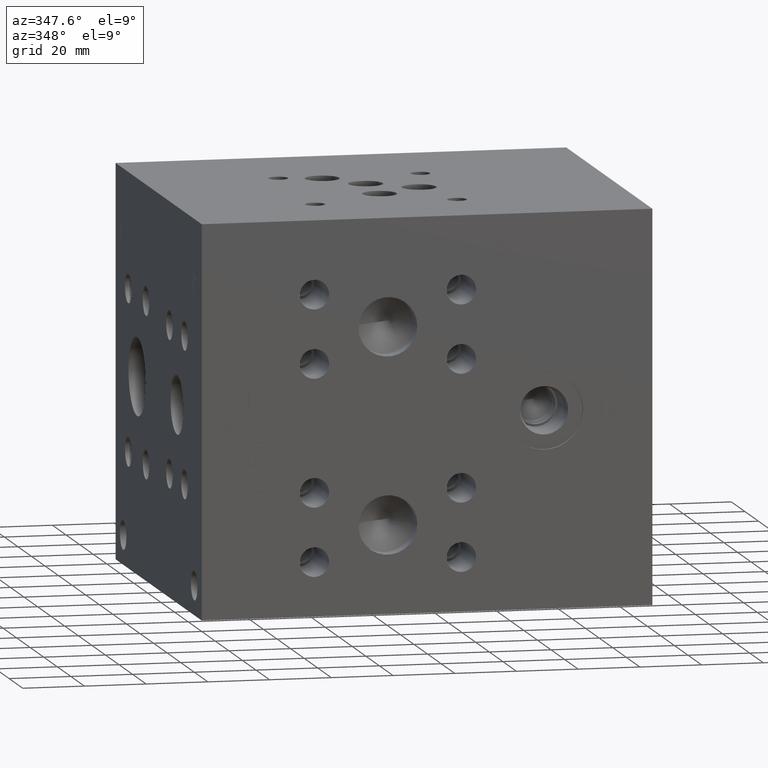
[diagram: clean part render]
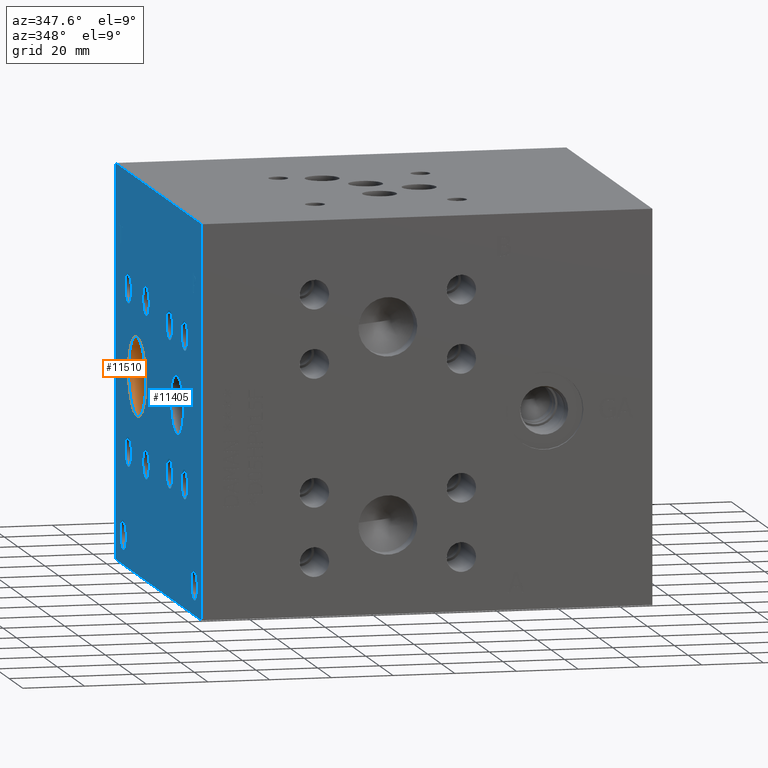
[diagram: same view with the hole feature highlighted: cylindrical wall and planar end face, labeled with their STEP entity ids]
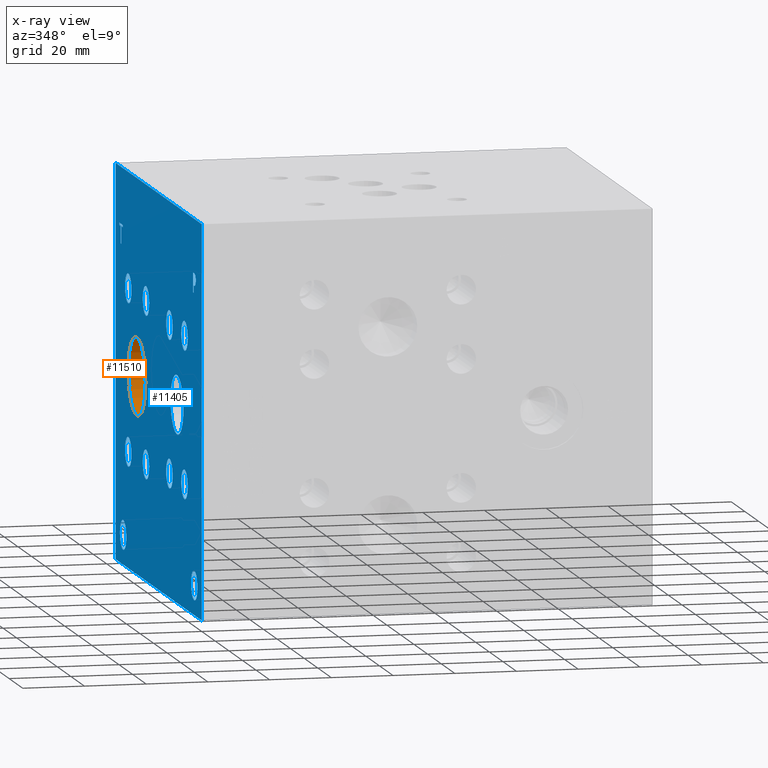
[diagram: x-ray of the same camera — body ghosted, the hole faces saturated]
A machine part, auxiliary view. The highlighted faces form one hole feature of diameter 25.4 mm: the cylindrical wall (entity #11510, orange) and its adjacent planar end face (entity #11405, blue) — they share a circular edge in the B-rep.
The next image is the same camera in x-ray (body ghosted, the hole faces saturated) — the bore reads through the body.
Wall:
#45=CYLINDRICAL_SURFACE('',#12154,12.7);
#203=CIRCLE('',#11975,12.7);
#204=CIRCLE('',#11976,12.7);
#290=CIRCLE('',#12152,12.7);
#291=CIRCLE('',#12153,12.7);
#1386=FACE_OUTER_BOUND('',#2071,.T.);
#2071=EDGE_LOOP('',(#9992,#9993,#9994,#9995,#9996,#9997));
#3195=LINE('',#19368,#4267);
#4267=VECTOR('',#14442,12.7);
#5384=VERTEX_POINT('',#18716);
#5385=VERTEX_POINT('',#18717);
#5538=VERTEX_POINT('',#19361);
#5539=VERTEX_POINT('',#19362);
#6858=EDGE_CURVE('',#5384,#5385,#203,.T.);
#6859=EDGE_CURVE('',#5385,#5384,#204,.T.);
#7081=EDGE_CURVE('',#5538,#5539,#290,.T.);
#7083=EDGE_CURVE('',#5539,#5538,#291,.T.);
#7084=EDGE_CURVE('',#5385,#5539,#3195,.T.);
#9992=ORIENTED_EDGE('',*,*,#6858,.F.);
#9993=ORIENTED_EDGE('',*,*,#6859,.F.);
#9994=ORIENTED_EDGE('',*,*,#7084,.T.);
#9995=ORIENTED_EDGE('',*,*,#7081,.F.);
#9996=ORIENTED_EDGE('',*,*,#7083,.F.);
#9997=ORIENTED_EDGE('',*,*,#7084,.F.);
#11510=ADVANCED_FACE('',(#1386),#45,.F.);
#11975=AXIS2_PLACEMENT_3D('',#18718,#13967,#13968);
#11976=AXIS2_PLACEMENT_3D('',#18719,#13969,#13970);
#12152=AXIS2_PLACEMENT_3D('',#19363,#14435,#14436);
#12153=AXIS2_PLACEMENT_3D('',#19366,#14438,#14439);
#12154=AXIS2_PLACEMENT_3D('',#19367,#14440,#14441);
#13967=DIRECTION('center_axis',(1.,0.,0.));
#13968=DIRECTION('ref_axis',(0.,1.,0.));
#13969=DIRECTION('center_axis',(1.,0.,0.));
#13970=DIRECTION('ref_axis',(0.,1.,0.));
#14435=DIRECTION('center_axis',(-1.,0.,0.));
#14436=DIRECTION('ref_axis',(0.,1.,0.));
#14438=DIRECTION('center_axis',(-1.,0.,0.));
#14439=DIRECTION('ref_axis',(0.,1.,0.));
#14440=DIRECTION('center_axis',(-1.,0.,0.));
#14441=DIRECTION('ref_axis',(0.,1.,0.));
#14442=DIRECTION('',(1.,0.,0.));
#18716=CARTESIAN_POINT('',(0.,107.95,63.5));
#18717=CARTESIAN_POINT('',(0.,82.55,63.5));
#18718=CARTESIAN_POINT('Origin',(0.,95.25,63.5));
#18719=CARTESIAN_POINT('Origin',(0.,95.25,63.5));
#19361=CARTESIAN_POINT('',(7.33235,107.95,63.5));
#19362=CARTESIAN_POINT('',(7.33235,82.55,63.5));
#19363=CARTESIAN_POINT('Origin',(7.33235,95.25,63.5));
#19366=CARTESIAN_POINT('Origin',(7.33235,95.25,63.5));
#19367=CARTESIAN_POINT('Origin',(3.666175,95.25,63.5));
#19368=CARTESIAN_POINT('',(3.666175,82.55,63.5));
End face:
#185=CIRCLE('',#11957,9.525);
#186=CIRCLE('',#11958,9.525);
#187=CIRCLE('',#11959,4.7625);
#188=CIRCLE('',#11960,4.7625);
#189=CIRCLE('',#11961,4.7625);
#190=CIRCLE('',#11962,4.7625);
#191=CIRCLE('',#11963,4.7625);
#192=CIRCLE('',#11964,4.7625);
#193=CIRCLE('',#11965,4.7625);
#194=CIRCLE('',#11966,4.7625);
#195=CIRCLE('',#11967,4.7625);
#196=CIRCLE('',#11968,4.7625);
#197=CIRCLE('',#11969,4.7625);
#198=CIRCLE('',#11970,4.7625);
#199=CIRCLE('',#11971,4.7625);
#200=CIRCLE('',#11972,4.7625);
#201=CIRCLE('',#11973,4.7625);
#202=CIRCLE('',#11974,4.7625);
#203=CIRCLE('',#11975,12.7);
#204=CIRCLE('',#11976,12.7);
#205=CIRCLE('',#11977,4.7625);
#206=CIRCLE('',#11978,4.7625);
#207=CIRCLE('',#11979,4.7625);
#208=CIRCLE('',#11980,4.7625);
#480=FACE_BOUND('',#1936,.T.);
#481=FACE_BOUND('',#1937,.T.);
#482=FACE_BOUND('',#1938,.T.);
#483=FACE_BOUND('',#1939,.T.);
#484=FACE_BOUND('',#1940,.T.);
#485=FACE_BOUND('',#1941,.T.);
#486=FACE_BOUND('',#1942,.T.);
#487=FACE_BOUND('',#1943,.T.);
#488=FACE_BOUND('',#1944,.T.);
#489=FACE_BOUND('',#1945,.T.);
#490=FACE_BOUND('',#1946,.T.);
#491=FACE_BOUND('',#1947,.T.);
#492=FACE_BOUND('',#1948,.T.);
#493=FACE_BOUND('',#1949,.T.);
#824=PLANE('',#11956);
#1281=FACE_OUTER_BOUND('',#1935,.T.);
#1935=EDGE_LOOP('',(#9465,#9466,#9467,#9468));
#1936=EDGE_LOOP('',(#9469,#9470,#9471,#9472,#9473,#9474,#9475,#9476));
#1937=EDGE_LOOP('',(#9477,#9478));
#1938=EDGE_LOOP('',(#9479,#9480));
#1939=EDGE_LOOP('',(#9481,#9482));
#1940=EDGE_LOOP('',(#9483,#9484));
#1941=EDGE_LOOP('',(#9485,#9486));
#1942=EDGE_LOOP('',(#9487,#9488));
#1943=EDGE_LOOP('',(#9489,#9490));
#1944=EDGE_LOOP('',(#9491,#9492));
#1945=EDGE_LOOP('',(#9493,#9494));
#1946=EDGE_LOOP('',(#9495,#9496));
#1947=EDGE_LOOP('',(#9497,#9498));
#1948=EDGE_LOOP('',(#9499,#9500));
#1949=EDGE_LOOP('',(#9501,#9502,#9503,#9504,#9505,#9506,#9507,#9508,#9509));
#2504=LINE('',#16739,#3576);
#3021=LINE('',#18427,#4093);
#3025=LINE('',#18435,#4097);
#3028=LINE('',#18441,#4100);
#3031=LINE('',#18447,#4103);
#3034=LINE('',#18453,#4106);
#3037=LINE('',#18459,#4109);
#3040=LINE('',#18465,#4112);
#3043=LINE('',#18470,#4115);
#3061=LINE('',#18610,#4133);
#3064=LINE('',#18616,#4136);
#3067=LINE('',#18622,#4139);
#3070=LINE('',#18628,#4142);
#3073=LINE('',#18634,#4145);
#3077=LINE('',#18676,#4149);
#3078=LINE('',#18678,#4150);
#3079=LINE('',#18679,#4151);
#3576=VECTOR('',#12869,10.);
#4093=VECTOR('',#13836,10.);
#4097=VECTOR('',#13842,10.);
#4100=VECTOR('',#13847,10.);
#4103=VECTOR('',#13852,10.);
#4106=VECTOR('',#13857,10.);
#4109=VECTOR('',#13862,10.);
#4112=VECTOR('',#13867,10.);
#4115=VECTOR('',#13872,10.);
#4133=VECTOR('',#13900,10.);
#4136=VECTOR('',#13905,10.);
#4139=VECTOR('',#13910,10.);
#4142=VECTOR('',#13915,10.);
#4145=VECTOR('',#13920,10.);
#4149=VECTOR('',#13928,10.);
#4150=VECTOR('',#13929,10.);
#4151=VECTOR('',#13930,10.);
#4552=B_SPLINE_CURVE_WITH_KNOTS('',2,(#18577,#18578,#18579,#18580),
 .UNSPECIFIED.,.F.,.F.,(3,1,3),(0.,1.,2.),.UNSPECIFIED.);
#4554=B_SPLINE_CURVE_WITH_KNOTS('',2,(#18598,#18599,#18600,#18601),
 .UNSPECIFIED.,.F.,.F.,(3,1,3),(0.,1.,2.),.UNSPECIFIED.);
#4556=B_SPLINE_CURVE_WITH_KNOTS('',2,(#18647,#18648,#18649,#18650),
 .UNSPECIFIED.,.F.,.F.,(3,1,3),(0.,1.,2.),.UNSPECIFIED.);
#4558=B_SPLINE_CURVE_WITH_KNOTS('',2,(#18665,#18666,#18667,#18668),
 .UNSPECIFIED.,.F.,.F.,(3,1,3),(0.,1.,2.),.UNSPECIFIED.);
#4872=VERTEX_POINT('',#16732);
#4875=VERTEX_POINT('',#16737);
#5316=VERTEX_POINT('',#18425);
#5317=VERTEX_POINT('',#18426);
#5320=VERTEX_POINT('',#18434);
#5322=VERTEX_POINT('',#18440);
#5324=VERTEX_POINT('',#18446);
#5326=VERTEX_POINT('',#18452);
#5328=VERTEX_POINT('',#18458);
#5330=VERTEX_POINT('',#18464);
#5346=VERTEX_POINT('',#18575);
#5347=VERTEX_POINT('',#18576);
#5350=VERTEX_POINT('',#18597);
#5352=VERTEX_POINT('',#18609);
#5354=VERTEX_POINT('',#18615);
#5356=VERTEX_POINT('',#18621);
#5358=VERTEX_POINT('',#18627);
#5360=VERTEX_POINT('',#18633);
#5362=VERTEX_POINT('',#18646);
#5364=VERTEX_POINT('',#18675);
#5365=VERTEX_POINT('',#18677);
#5366=VERTEX_POINT('',#18680);
#5367=VERTEX_POINT('',#18681);
#5368=VERTEX_POINT('',#18684);
#5369=VERTEX_POINT('',#18685);
#5370=VERTEX_POINT('',#18688);
#5371=VERTEX_POINT('',#18689);
#5372=VERTEX_POINT('',#18692);
#5373=VERTEX_POINT('',#18693);
#5374=VERTEX_POINT('',#18696);
#5375=VERTEX_POINT('',#18697);
#5376=VERTEX_POINT('',#18700);
#5377=VERTEX_POINT('',#18701);
#5378=VERTEX_POINT('',#18704);
#5379=VERTEX_POINT('',#18705);
#5380=VERTEX_POINT('',#18708);
#5381=VERTEX_POINT('',#18709);
#5382=VERTEX_POINT('',#18712);
#5383=VERTEX_POINT('',#18713);
#5384=VERTEX_POINT('',#18716);
#5385=VERTEX_POINT('',#18717);
#5386=VERTEX_POINT('',#18720);
#5387=VERTEX_POINT('',#18721);
#5388=VERTEX_POINT('',#18724);
#5389=VERTEX_POINT('',#18725);
#6136=EDGE_CURVE('',#4872,#4875,#2504,.T.);
#6765=EDGE_CURVE('',#5316,#5317,#3021,.T.);
#6769=EDGE_CURVE('',#5320,#5316,#3025,.T.);
#6772=EDGE_CURVE('',#5322,#5320,#3028,.T.);
#6775=EDGE_CURVE('',#5324,#5322,#3031,.T.);
#6778=EDGE_CURVE('',#5326,#5324,#3034,.T.);
#6781=EDGE_CURVE('',#5328,#5326,#3037,.T.);
#6784=EDGE_CURVE('',#5330,#5328,#3040,.T.);
#6787=EDGE_CURVE('',#5317,#5330,#3043,.T.);
#6810=EDGE_CURVE('',#5346,#5347,#4552,.T.);
#6814=EDGE_CURVE('',#5350,#5346,#4554,.T.);
#6817=EDGE_CURVE('',#5352,#5350,#3061,.T.);
#6820=EDGE_CURVE('',#5354,#5352,#3064,.T.);
#6823=EDGE_CURVE('',#5356,#5354,#3067,.T.);
#6826=EDGE_CURVE('',#5358,#5356,#3070,.T.);
#6829=EDGE_CURVE('',#5360,#5358,#3073,.T.);
#6832=EDGE_CURVE('',#5362,#5360,#4556,.T.);
#6835=EDGE_CURVE('',#5347,#5362,#4558,.T.);
#6837=EDGE_CURVE('',#5364,#4872,#3077,.T.);
#6838=EDGE_CURVE('',#5365,#4875,#3078,.T.);
#6839=EDGE_CURVE('',#5364,#5365,#3079,.T.);
#6840=EDGE_CURVE('',#5366,#5367,#185,.T.);
#6841=EDGE_CURVE('',#5367,#5366,#186,.T.);
#6842=EDGE_CURVE('',#5368,#5369,#187,.T.);
#6843=EDGE_CURVE('',#5369,#5368,#188,.T.);
#6844=EDGE_CURVE('',#5370,#5371,#189,.T.);
#6845=EDGE_CURVE('',#5371,#5370,#190,.T.);
#6846=EDGE_CURVE('',#5372,#5373,#191,.T.);
#6847=EDGE_CURVE('',#5373,#5372,#192,.T.);
#6848=EDGE_CURVE('',#5374,#5375,#193,.T.);
#6849=EDGE_CURVE('',#5375,#5374,#194,.T.);
#6850=EDGE_CURVE('',#5376,#5377,#195,.T.);
#6851=EDGE_CURVE('',#5377,#5376,#196,.T.);
#6852=EDGE_CURVE('',#5378,#5379,#197,.T.);
#6853=EDGE_CURVE('',#5379,#5378,#198,.T.);
#6854=EDGE_CURVE('',#5380,#5381,#199,.T.);
#6855=EDGE_CURVE('',#5381,#5380,#200,.T.);
#6856=EDGE_CURVE('',#5382,#5383,#201,.T.);
#6857=EDGE_CURVE('',#5383,#5382,#202,.T.);
#6858=EDGE_CURVE('',#5384,#5385,#203,.T.);
#6859=EDGE_CURVE('',#5385,#5384,#204,.T.);
#6860=EDGE_CURVE('',#5386,#5387,#205,.T.);
#6861=EDGE_CURVE('',#5387,#5386,#206,.T.);
#6862=EDGE_CURVE('',#5388,#5389,#207,.T.);
#6863=EDGE_CURVE('',#5389,#5388,#208,.T.);
#9465=ORIENTED_EDGE('',*,*,#6837,.T.);
#9466=ORIENTED_EDGE('',*,*,#6136,.T.);
#9467=ORIENTED_EDGE('',*,*,#6838,.F.);
#9468=ORIENTED_EDGE('',*,*,#6839,.F.);
#9469=ORIENTED_EDGE('',*,*,#6765,.T.);
#9470=ORIENTED_EDGE('',*,*,#6787,.T.);
#9471=ORIENTED_EDGE('',*,*,#6784,.T.);
#9472=ORIENTED_EDGE('',*,*,#6781,.T.);
#9473=ORIENTED_EDGE('',*,*,#6778,.T.);
#9474=ORIENTED_EDGE('',*,*,#6775,.T.);
#9475=ORIENTED_EDGE('',*,*,#6772,.T.);
#9476=ORIENTED_EDGE('',*,*,#6769,.T.);
#9477=ORIENTED_EDGE('',*,*,#6840,.T.);
#9478=ORIENTED_EDGE('',*,*,#6841,.T.);
#9479=ORIENTED_EDGE('',*,*,#6842,.T.);
#9480=ORIENTED_EDGE('',*,*,#6843,.T.);
#9481=ORIENTED_EDGE('',*,*,#6844,.T.);
#9482=ORIENTED_EDGE('',*,*,#6845,.T.);
#9483=ORIENTED_EDGE('',*,*,#6846,.T.);
#9484=ORIENTED_EDGE('',*,*,#6847,.T.);
#9485=ORIENTED_EDGE('',*,*,#6848,.T.);
#9486=ORIENTED_EDGE('',*,*,#6849,.T.);
#9487=ORIENTED_EDGE('',*,*,#6850,.T.);
#9488=ORIENTED_EDGE('',*,*,#6851,.T.);
#9489=ORIENTED_EDGE('',*,*,#6852,.T.);
#9490=ORIENTED_EDGE('',*,*,#6853,.T.);
#9491=ORIENTED_EDGE('',*,*,#6854,.T.);
#9492=ORIENTED_EDGE('',*,*,#6855,.T.);
#9493=ORIENTED_EDGE('',*,*,#6856,.T.);
#9494=ORIENTED_EDGE('',*,*,#6857,.T.);
#9495=ORIENTED_EDGE('',*,*,#6858,.T.);
#9496=ORIENTED_EDGE('',*,*,#6859,.T.);
#9497=ORIENTED_EDGE('',*,*,#6860,.T.);
#9498=ORIENTED_EDGE('',*,*,#6861,.T.);
#9499=ORIENTED_EDGE('',*,*,#6862,.T.);
#9500=ORIENTED_EDGE('',*,*,#6863,.T.);
#9501=ORIENTED_EDGE('',*,*,#6810,.T.);
#9502=ORIENTED_EDGE('',*,*,#6835,.T.);
#9503=ORIENTED_EDGE('',*,*,#6832,.T.);
#9504=ORIENTED_EDGE('',*,*,#6829,.T.);
#9505=ORIENTED_EDGE('',*,*,#6826,.T.);
#9506=ORIENTED_EDGE('',*,*,#6823,.T.);
#9507=ORIENTED_EDGE('',*,*,#6820,.T.);
#9508=ORIENTED_EDGE('',*,*,#6817,.T.);
#9509=ORIENTED_EDGE('',*,*,#6814,.T.);
#11405=ADVANCED_FACE('',(#1281,#480,#481,#482,#483,#484,#485,#486,#487,
#488,#489,#490,#491,#492,#493),#824,.T.);
#11956=AXIS2_PLACEMENT_3D('',#18674,#13926,#13927);
#11957=AXIS2_PLACEMENT_3D('',#18682,#13931,#13932);
#11958=AXIS2_PLACEMENT_3D('',#18683,#13933,#13934);
#11959=AXIS2_PLACEMENT_3D('',#18686,#13935,#13936);
#11960=AXIS2_PLACEMENT_3D('',#18687,#13937,#13938);
#11961=AXIS2_PLACEMENT_3D('',#18690,#13939,#13940);
#11962=AXIS2_PLACEMENT_3D('',#18691,#13941,#13942);
#11963=AXIS2_PLACEMENT_3D('',#18694,#13943,#13944);
#11964=AXIS2_PLACEMENT_3D('',#18695,#13945,#13946);
#11965=AXIS2_PLACEMENT_3D('',#18698,#13947,#13948);
#11966=AXIS2_PLACEMENT_3D('',#18699,#13949,#13950);
#11967=AXIS2_PLACEMENT_3D('',#18702,#13951,#13952);
#11968=AXIS2_PLACEMENT_3D('',#18703,#13953,#13954);
#11969=AXIS2_PLACEMENT_3D('',#18706,#13955,#13956);
#11970=AXIS2_PLACEMENT_3D('',#18707,#13957,#13958);
#11971=AXIS2_PLACEMENT_3D('',#18710,#13959,#13960);
#11972=AXIS2_PLACEMENT_3D('',#18711,#13961,#13962);
#11973=AXIS2_PLACEMENT_3D('',#18714,#13963,#13964);
#11974=AXIS2_PLACEMENT_3D('',#18715,#13965,#13966);
#11975=AXIS2_PLACEMENT_3D('',#18718,#13967,#13968);
#11976=AXIS2_PLACEMENT_3D('',#18719,#13969,#13970);
#11977=AXIS2_PLACEMENT_3D('',#18722,#13971,#13972);
#11978=AXIS2_PLACEMENT_3D('',#18723,#13973,#13974);
#11979=AXIS2_PLACEMENT_3D('',#18726,#13975,#13976);
#11980=AXIS2_PLACEMENT_3D('',#18727,#13977,#13978);
#12869=DIRECTION('',(0.,0.,1.));
#13836=DIRECTION('',(0.,1.,0.));
#13842=DIRECTION('',(0.,3.17280044688051E-15,-1.));
#13847=DIRECTION('',(0.,1.,8.33818088455555E-15));
#13852=DIRECTION('',(0.,2.36438827822327E-14,-1.));
#13857=DIRECTION('',(0.,-1.,-3.47984565141734E-15));
#13862=DIRECTION('',(0.,-2.36438827822332E-14,1.));
#13867=DIRECTION('',(0.,1.,8.33818088455555E-15));
#13872=DIRECTION('',(0.,-3.17280044688051E-15,1.));
#13900=DIRECTION('',(0.,-1.,0.));
#13905=DIRECTION('',(0.,-3.14708893596576E-15,1.));
#13910=DIRECTION('',(0.,1.,0.));
#13915=DIRECTION('',(0.,2.81413604853751E-15,-1.));
#13920=DIRECTION('',(0.,1.,0.));
#13926=DIRECTION('center_axis',(-1.,0.,0.));
#13927=DIRECTION('ref_axis',(0.,-1.,0.));
#13928=DIRECTION('',(0.,-1.,0.));
#13929=DIRECTION('',(0.,-1.,0.));
#13930=DIRECTION('',(0.,0.,1.));
#13931=DIRECTION('center_axis',(1.,0.,0.));
#13932=DIRECTION('ref_axis',(0.,1.,0.));
#13933=DIRECTION('center_axis',(1.,0.,0.));
#13934=DIRECTION('ref_axis',(0.,1.,0.));
#13935=DIRECTION('center_axis',(1.,0.,0.));
#13936=DIRECTION('ref_axis',(0.,1.,0.));
#13937=DIRECTION('center_axis',(1.,0.,0.));
#13938=DIRECTION('ref_axis',(0.,1.,0.));
#13939=DIRECTION('center_axis',(1.,0.,0.));
#13940=DIRECTION('ref_axis',(0.,1.,0.));
#13941=DIRECTION('center_axis',(1.,0.,0.));
#13942=DIRECTION('ref_axis',(0.,1.,0.));
#13943=DIRECTION('center_axis',(1.,0.,0.));
#13944=DIRECTION('ref_axis',(0.,1.,0.));
#13945=DIRECTION('center_axis',(1.,0.,0.));
#13946=DIRECTION('ref_axis',(0.,1.,0.));
#13947=DIRECTION('center_axis',(1.,0.,0.));
#13948=DIRECTION('ref_axis',(0.,1.,0.));
#13949=DIRECTION('center_axis',(1.,0.,0.));
#13950=DIRECTION('ref_axis',(0.,1.,0.));
#13951=DIRECTION('center_axis',(1.,0.,0.));
#13952=DIRECTION('ref_axis',(0.,1.,0.));
#13953=DIRECTION('center_axis',(1.,0.,0.));
#13954=DIRECTION('ref_axis',(0.,1.,0.));
#13955=DIRECTION('center_axis',(1.,0.,0.));
#13956=DIRECTION('ref_axis',(0.,1.,0.));
#13957=DIRECTION('center_axis',(1.,0.,0.));
#13958=DIRECTION('ref_axis',(0.,1.,0.));
#13959=DIRECTION('center_axis',(1.,0.,0.));
#13960=DIRECTION('ref_axis',(0.,1.,0.));
#13961=DIRECTION('center_axis',(1.,0.,0.));
#13962=DIRECTION('ref_axis',(0.,1.,0.));
#13963=DIRECTION('center_axis',(1.,0.,0.));
#13964=DIRECTION('ref_axis',(0.,1.,0.));
#13965=DIRECTION('center_axis',(1.,0.,0.));
#13966=DIRECTION('ref_axis',(0.,1.,0.));
#13967=DIRECTION('center_axis',(1.,0.,0.));
#13968=DIRECTION('ref_axis',(0.,1.,0.));
#13969=DIRECTION('center_axis',(1.,0.,0.));
#13970=DIRECTION('ref_axis',(0.,1.,0.));
#13971=DIRECTION('center_axis',(1.,0.,0.));
#13972=DIRECTION('ref_axis',(0.,1.,0.));
#13973=DIRECTION('center_axis',(1.,0.,0.));
#13974=DIRECTION('ref_axis',(0.,1.,0.));
#13975=DIRECTION('center_axis',(1.,0.,0.));
#13976=DIRECTION('ref_axis',(0.,1.,0.));
#13977=DIRECTION('center_axis',(1.,0.,0.));
#13978=DIRECTION('ref_axis',(0.,1.,0.));
#16732=CARTESIAN_POINT('',(0.,0.,0.));
#16737=CARTESIAN_POINT('',(0.,0.,127.));
#16739=CARTESIAN_POINT('',(0.,0.,0.));
#18425=CARTESIAN_POINT('',(0.,118.474584728547,102.39375));
#18426=CARTESIAN_POINT('',(0.,119.318506920087,102.39375));
#18427=CARTESIAN_POINT('',(0.,122.737292364274,102.39375));
#18434=CARTESIAN_POINT('',(0.,118.474584728547,107.992453319482));
#18435=CARTESIAN_POINT('',(0.,118.474584728547,53.9962266597408));
#18440=CARTESIAN_POINT('',(0.,116.344195781612,107.992453319482));
#18441=CARTESIAN_POINT('',(0.,121.672097890806,107.992453319482));
#18446=CARTESIAN_POINT('',(0.,116.344195781612,108.743749904633));
#18447=CARTESIAN_POINT('',(0.,116.344195781613,54.3718749523162));
#18452=CARTESIAN_POINT('',(0.,121.448895867022,108.743749904633));
#18453=CARTESIAN_POINT('',(0.,124.224447933511,108.743749904633));
#18458=CARTESIAN_POINT('',(0.,121.448895867022,107.992453319482));
#18459=CARTESIAN_POINT('',(0.,121.448895867023,53.9962266597407));
#18464=CARTESIAN_POINT('',(0.,119.318506920086,107.992453319482));
#18465=CARTESIAN_POINT('',(0.,123.159253460043,107.992453319482));
#18470=CARTESIAN_POINT('',(0.,119.318506920087,51.196875));
#18575=CARTESIAN_POINT('',(0.,9.59318279764059,109.141268143971));
#18576=CARTESIAN_POINT('',(0.,8.836740345468,107.623237372604));
#18577=CARTESIAN_POINT('Ctrl Pts',(0.,9.59318279764059,109.141268143971));
#18578=CARTESIAN_POINT('Ctrl Pts',(0.,9.23811797315141,108.899412393956));
#18579=CARTESIAN_POINT('Ctrl Pts',(0.,8.83674034546799,108.153261675827));
#18580=CARTESIAN_POINT('Ctrl Pts',(0.,8.836740345468,107.623237372604));
#18597=CARTESIAN_POINT('',(0.,11.2552978456117,109.537499904633));
#18598=CARTESIAN_POINT('Ctrl Pts',(0.,11.2552978456117,109.537499904633));
#18599=CARTESIAN_POINT('Ctrl Pts',(0.,10.6892524732376,109.537499904633));
#18600=CARTESIAN_POINT('Ctrl Pts',(0.,9.89678895191395,109.352248691856));
#18601=CARTESIAN_POINT('Ctrl Pts',(0.,9.59318279764059,109.141268143971));
#18609=CARTESIAN_POINT('',(0.,12.8505166223022,109.537499904633));
#18610=CARTESIAN_POINT('',(0.,69.9252583111511,109.537499904633));
#18615=CARTESIAN_POINT('',(0.,12.8505166223022,103.1875));
#18616=CARTESIAN_POINT('',(0.,12.8505166223024,51.5937499999998));
#18621=CARTESIAN_POINT('',(0.,12.0065944307627,103.1875));
#18622=CARTESIAN_POINT('',(0.,69.5032972153814,103.1875));
#18627=CARTESIAN_POINT('',(0.,12.0065944307627,105.554598829928));
#18628=CARTESIAN_POINT('',(0.,12.0065944307629,52.7772994149638));
#18633=CARTESIAN_POINT('',(0.,11.2913189147628,105.554598829928));
#18634=CARTESIAN_POINT('',(0.,69.1456594573814,105.554598829928));
#18646=CARTESIAN_POINT('',(0.,9.39249398379889,106.21326980869));
#18647=CARTESIAN_POINT('Ctrl Pts',(0.,9.39249398379889,106.21326980869));
#18648=CARTESIAN_POINT('Ctrl Pts',(0.,9.72182947318016,105.889080186331));
#18649=CARTESIAN_POINT('Ctrl Pts',(0.,10.6120644679139,105.554598829928));
#18650=CARTESIAN_POINT('Ctrl Pts',(0.,11.2913189147628,105.554598829928));
#18665=CARTESIAN_POINT('Ctrl Pts',(0.,8.836740345468,107.623237372604));
#18666=CARTESIAN_POINT('Ctrl Pts',(0.,8.836740345468,107.211568010877));
#18667=CARTESIAN_POINT('Ctrl Pts',(0.,9.13005476569819,106.47056315977));
#18668=CARTESIAN_POINT('Ctrl Pts',(0.,9.39249398379889,106.21326980869));
#18674=CARTESIAN_POINT('Origin',(0.,127.,0.));
#18675=CARTESIAN_POINT('',(0.,127.,0.));
#18676=CARTESIAN_POINT('',(0.,127.,0.));
#18677=CARTESIAN_POINT('',(0.,127.,127.));
#18678=CARTESIAN_POINT('',(0.,127.,127.));
#18679=CARTESIAN_POINT('',(0.,127.,0.));
#18680=CARTESIAN_POINT('',(0.,46.0375,63.5));
#18681=CARTESIAN_POINT('',(0.,26.9875,63.5));
#18682=CARTESIAN_POINT('Origin',(0.,36.5125,63.5));
#18683=CARTESIAN_POINT('Origin',(0.,36.5125,63.5));
#18684=CARTESIAN_POINT('',(0.,113.0935,37.3126));
#18685=CARTESIAN_POINT('',(0.,103.5685,37.3126));
#18686=CARTESIAN_POINT('Origin',(0.,108.331,37.3126));
#18687=CARTESIAN_POINT('Origin',(0.,108.331,37.3126));
#18688=CARTESIAN_POINT('',(0.,86.9315,89.6874));
#18689=CARTESIAN_POINT('',(0.,77.4065,89.6874));
#18690=CARTESIAN_POINT('Origin',(0.,82.169,89.6874));
#18691=CARTESIAN_POINT('Origin',(0.,82.169,89.6874));
#18692=CARTESIAN_POINT('',(0.,52.3748,87.2998));
#18693=CARTESIAN_POINT('',(0.,42.8498,87.2998));
#18694=CARTESIAN_POINT('Origin',(0.,47.6123,87.2998));
#18695=CARTESIAN_POINT('Origin',(0.,47.6123,87.2998));
#18696=CARTESIAN_POINT('',(0.,30.1752,39.7002));
#18697=CARTESIAN_POINT('',(0.,20.6502,39.7002));
#18698=CARTESIAN_POINT('Origin',(0.,25.4127,39.7002));
#18699=CARTESIAN_POINT('Origin',(0.,25.4127,39.7002));
#18700=CARTESIAN_POINT('',(0.,30.1752,87.2998));
#18701=CARTESIAN_POINT('',(0.,20.6502,87.2998));
#18702=CARTESIAN_POINT('Origin',(0.,25.4127,87.2998));
#18703=CARTESIAN_POINT('Origin',(0.,25.4127,87.2998));
#18704=CARTESIAN_POINT('',(0.,52.3748,39.7002));
#18705=CARTESIAN_POINT('',(0.,42.8498,39.7002));
#18706=CARTESIAN_POINT('Origin',(0.,47.6123,39.7002));
#18707=CARTESIAN_POINT('Origin',(0.,47.6123,39.7002));
#18708=CARTESIAN_POINT('',(0.,113.0935,89.69248));
#18709=CARTESIAN_POINT('',(0.,103.5685,89.69248));
#18710=CARTESIAN_POINT('Origin',(0.,108.331,89.69248));
#18711=CARTESIAN_POINT('Origin',(0.,108.331,89.69248));
#18712=CARTESIAN_POINT('',(0.,86.9315,37.30752));
#18713=CARTESIAN_POINT('',(0.,77.4065,37.30752));
#18714=CARTESIAN_POINT('Origin',(0.,82.169,37.30752));
#18715=CARTESIAN_POINT('Origin',(0.,82.169,37.30752));
#18716=CARTESIAN_POINT('',(0.,107.95,63.5));
#18717=CARTESIAN_POINT('',(0.,82.55,63.5));
#18718=CARTESIAN_POINT('Origin',(0.,95.25,63.5));
#18719=CARTESIAN_POINT('Origin',(0.,95.25,63.5));
#18720=CARTESIAN_POINT('',(0.,120.6373,9.52500000000001));
#18721=CARTESIAN_POINT('',(0.,111.1123,9.52500000000001));
#18722=CARTESIAN_POINT('Origin',(0.,115.8748,9.52500000000001));
#18723=CARTESIAN_POINT('Origin',(0.,115.8748,9.52500000000001));
#18724=CARTESIAN_POINT('',(0.,15.8877,9.52500000000001));
#18725=CARTESIAN_POINT('',(0.,6.3627,9.52500000000001));
#18726=CARTESIAN_POINT('Origin',(0.,11.1252,9.52500000000001));
#18727=CARTESIAN_POINT('Origin',(0.,11.1252,9.52500000000001));